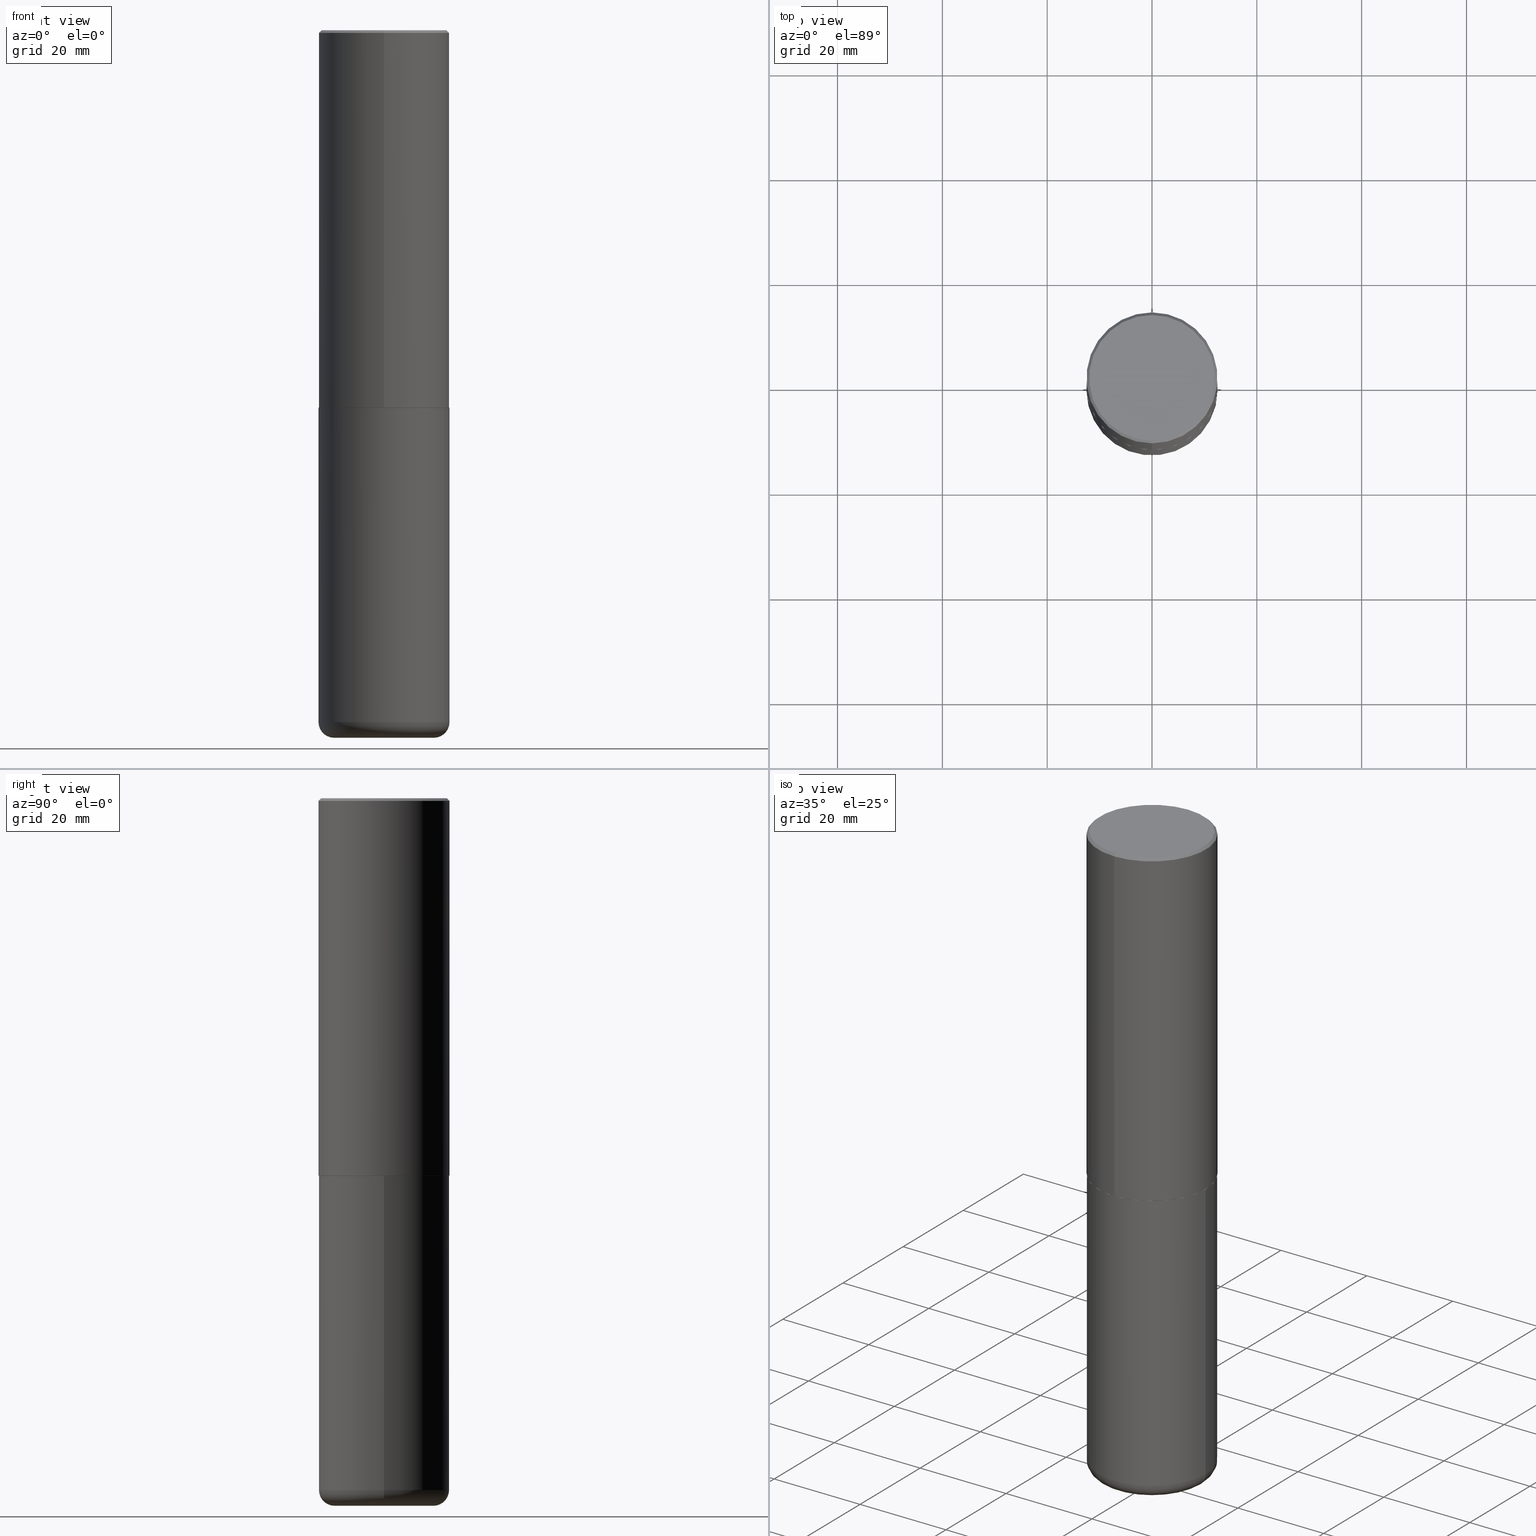
[diagram: canonical four-view strip — front | top / right | iso, engineering-drawing reading convention]
A machine part, canonical four-view strip (front | top / right | iso — engineering-drawing reading convention). The complete STEP part file that produces these views, byte-faithful:
ISO-10303-21;
HEADER;
FILE_DESCRIPTION (( 'STEP AP203' ),
    '1' );
FILE_NAME ('74877.STEP',
    '2024-05-02T19:26:33',
    ( '' ),
    ( '' ),
    'SwSTEP 2.0',
    'SolidWorks 2023',
    '' );
FILE_SCHEMA (( 'CONFIG_CONTROL_DESIGN' ));
ENDSEC;

DATA;
#1 = CIRCLE ( 'NONE', #272, 0.4921500000000000319 ) ;
#2 = EDGE_LOOP ( 'NONE', ( #293, #268 ) ) ;
#3 = CC_DESIGN_PERSON_AND_ORGANIZATION_ASSIGNMENT ( #46, #113, ( #188 ) ) ;
#4 = ORIENTED_EDGE ( 'NONE', *, *, #367, .T. ) ;
#5 = PERSON_AND_ORGANIZATION ( #160, #13 ) ;
#6 = DIMENSIONAL_EXPONENTS ( 1.000000000000000000, 0.000000000000000000, 0.000000000000000000, 0.000000000000000000, 0.000000000000000000, 0.000000000000000000, 0.000000000000000000 ) ;
#7 = ORIENTED_EDGE ( 'NONE', *, *, #92, .F. ) ;
#8 = EDGE_CURVE ( 'NONE', #206, #271, #350, .T. ) ;
#9 = CALENDAR_DATE ( 2024, 2, 5 ) ;
#10 = CARTESIAN_POINT ( 'NONE',  ( 3.436665081823296565E-15, 0.4921499999999999764, -0.02000000000000182535 ) ) ;
#11 = AXIS2_PLACEMENT_3D ( 'NONE', #226, #410, #257 ) ;
#12 = EDGE_CURVE ( 'NONE', #106, #104, #30, .T. ) ;
#13 = ORGANIZATION ( 'UNSPECIFIED', 'UNSPECIFIED', '' ) ;
#14 = CARTESIAN_POINT ( 'NONE',  ( 6.932170424893007423E-29, -9.897302151218665974E-15, -2.834700000000000220 ) ) ;
#15 = DIRECTION ( 'NONE',  ( 1.000000000000000000, -6.982962677686266711E-15, 4.883557194083112340E-29 ) ) ;
#16 = ADVANCED_FACE ( 'NONE', ( #170 ), #403, .F. ) ;
#17 = DIRECTION ( 'NONE',  ( -6.982962677686265922E-15, -1.000000000000000000, 3.491824508290438613E-15 ) ) ;
#18 = AXIS2_PLACEMENT_3D ( 'NONE', #94, #408, #314 ) ;
#19 = CARTESIAN_POINT ( 'NONE',  ( -3.429682119145539948E-15, -0.4911500000000098565, -2.834699999999998443 ) ) ;
#20 = FACE_OUTER_BOUND ( 'NONE', #114, .T. ) ;
#21 = EDGE_CURVE ( 'NONE', #271, #215, #310, .T. ) ;
#22 = DIRECTION ( 'NONE',  ( 1.000000000000000000, -6.982962677686265133E-15, 0.000000000000000000 ) ) ;
#23 = AXIS2_PLACEMENT_3D ( 'NONE', #223, #184, #120 ) ;
#24 = AXIS2_PLACEMENT_3D ( 'NONE', #180, #280, #405 ) ;
#25 = CYLINDRICAL_SURFACE ( 'NONE', #196, 0.4921499999999999764 ) ;
#26 = FACE_OUTER_BOUND ( 'NONE', #356, .T. ) ;
#27 = DIRECTION ( 'NONE',  ( -2.445468806185136597E-29, 3.491481338843145583E-15, 1.000000000000000000 ) ) ;
#28 = CC_DESIGN_SECURITY_CLASSIFICATION ( #230, ( #188 ) ) ;
#29 = DIRECTION ( 'NONE',  ( -6.982962677686265922E-15, -1.000000000000000000, 3.330506545156063891E-15 ) ) ;
#30 = CIRCLE ( 'NONE', #246, 0.4721499999999997921 ) ;
#31 = ORIENTED_EDGE ( 'NONE', *, *, #397, .F. ) ;
#32 = CARTESIAN_POINT ( 'NONE',  ( 6.931491134551223323E-29, -9.898274933650907147E-15, -2.834700000000000220 ) ) ;
#33 = ORIENTED_EDGE ( 'NONE', *, *, #21, .T. ) ;
#34 = CARTESIAN_POINT ( 'NONE',  ( -3.429682119145539948E-15, -0.4911500000000098565, -2.834699999999998443 ) ) ;
#35 = EDGE_LOOP ( 'NONE', ( #263, #195, #33, #417 ) ) ;
#36 = CARTESIAN_POINT ( 'NONE',  ( -3.436665081823228329E-15, -0.4921500000000101904, -2.833699999999998997 ) ) ;
#37 = CIRCLE ( 'NONE', #254, 0.4921499999999999764 ) ;
#38 = ORIENTED_EDGE ( 'NONE', *, *, #140, .T. ) ;
#39 = ORIENTED_EDGE ( 'NONE', *, *, #348, .T. ) ;
#40 = PRODUCT_DEFINITION_SHAPE ( 'NONE', 'NONE',  #194 ) ;
#41 = APPROVAL_DATE_TIME ( #83, #393 ) ;
#42 = CARTESIAN_POINT ( 'NONE',  ( 3.489830646685800520E-15, 0.4911499999999900390, -2.834700000000001996 ) ) ;
#43 = DATE_AND_TIME ( #207, #67 ) ;
#44 = CARTESIAN_POINT ( 'NONE',  ( -3.307789109625542536E-15, -0.4721499999999997921, 1.930548793390495776E-15 ) ) ;
#45 = AXIS2_PLACEMENT_3D ( 'NONE', #182, #378, #253 ) ;
#46 = PERSON_AND_ORGANIZATION ( #160, #13 ) ;
#47 = DIRECTION ( 'NONE',  ( -1.000000000000000000, 6.982962677686265922E-15, -4.876176775795935793E-29 ) ) ;
#48 = APPROVAL_STATUS ( 'not_yet_approved' ) ;
#49 = MANIFOLD_SOLID_BREP ( 'Body-Move/Copy2[2]', #220 ) ;
#50 = CARTESIAN_POINT ( 'NONE',  ( 6.931491134551223323E-29, -9.898274933650907147E-15, -2.834700000000000220 ) ) ;
#51 = PERSON_AND_ORGANIZATION ( #160, #13 ) ;
#52 = FACE_OUTER_BOUND ( 'NONE', #99, .T. ) ;
#53 = CIRCLE ( 'NONE', #181, 0.4911499999999999755 ) ;
#54 =( GEOMETRIC_REPRESENTATION_CONTEXT ( 3 ) GLOBAL_UNCERTAINTY_ASSIGNED_CONTEXT ( ( #183 ) ) GLOBAL_UNIT_ASSIGNED_CONTEXT ( ( #259, #266, #389 ) ) REPRESENTATION_CONTEXT ( 'NONE', 'WORKASPACE' ) );
#55 = DIRECTION ( 'NONE',  ( -6.982962677686265922E-15, -1.000000000000000000, 3.337287582609300506E-15 ) ) ;
#56 = EDGE_CURVE ( 'NONE', #363, #390, #79, .T. ) ;
#57 = CARTESIAN_POINT ( 'NONE',  ( 3.297005828269569180E-15, 0.4721499999999997921, -1.507723015688746393E-15 ) ) ;
#58 = CARTESIAN_POINT ( 'NONE',  ( -0.4921499999999999764, -1.464794329579061349E-14, -5.196900000000000297 ) ) ;
#59 = VECTOR ( 'NONE', #85, 39.37007874015748143 ) ;
#60 = FACE_OUTER_BOUND ( 'NONE', #2, .T. ) ;
#61 = DIRECTION ( 'NONE',  ( -2.445229172240879899E-29, 3.491824508290438219E-15, 1.000000000000000000 ) ) ;
#62 = CC_DESIGN_PERSON_AND_ORGANIZATION_ASSIGNMENT ( #243, #274, ( #230 ) ) ;
#63 = PLANE ( 'NONE',  #413 ) ;
#64 = ORIENTED_EDGE ( 'NONE', *, *, #311, .F. ) ;
#65 = DIRECTION ( 'NONE',  ( 6.982962677686265922E-15, 1.000000000000000000, -3.495297233588267070E-15 ) ) ;
#66 = AXIS2_PLACEMENT_3D ( 'NONE', #317, #374, #87 ) ;
#67 = LOCAL_TIME ( 15, 26, 33.00000000000000000, #76 ) ;
#68 = EDGE_LOOP ( 'NONE', ( #109, #209, #203, #231 ) ) ;
#69 = VERTEX_POINT ( 'NONE', #10 ) ;
#70 = DIRECTION ( 'NONE',  ( -2.445229172240879899E-29, 3.491824508290438219E-15, 1.000000000000000000 ) ) ;
#71 = ORIENTED_EDGE ( 'NONE', *, *, #8, .T. ) ;
#72 = ADVANCED_FACE ( 'NONE', ( #398 ), #273, .T. ) ;
#73 = DIRECTION ( 'NONE',  ( 1.000000000000000000, 0.000000000000000000, 0.000000000000000000 ) ) ;
#74 = ORIENTED_EDGE ( 'NONE', *, *, #154, .T. ) ;
#75 = LOCAL_TIME ( 15, 26, 33.00000000000000000, #107 ) ;
#76 = COORDINATED_UNIVERSAL_TIME_OFFSET ( 5, 0, .BEHIND. ) ;
#77 = LINE ( 'NONE', #42, #297 ) ;
#78 = APPROVAL_STATUS ( 'not_yet_approved' ) ;
#79 = LINE ( 'NONE', #19, #59 ) ;
#80 = DIRECTION ( 'NONE',  ( -2.445468806185136597E-29, 3.491481338843145583E-15, 1.000000000000000000 ) ) ;
#81 = ADVANCED_FACE ( 'NONE', ( #176 ), #344, .T. ) ;
#82 = CC_DESIGN_APPROVAL ( #393, ( #188 ) ) ;
#83 = DATE_AND_TIME ( #338, #124 ) ;
#84 = DIRECTION ( 'NONE',  ( -2.445229172240879899E-29, 3.491824508290438219E-15, 1.000000000000000000 ) ) ;
#85 = DIRECTION ( 'NONE',  ( -4.937700262165896205E-15, -0.7071067811867381980, 0.7071067811863568364 ) ) ;
#86 = EDGE_CURVE ( 'NONE', #390, #373, #145, .T. ) ;
#87 = DIRECTION ( 'NONE',  ( 1.000000000000000000, -6.982962677686265133E-15, 0.000000000000000000 ) ) ;
#88 = CONICAL_SURFACE ( 'NONE', #388, 0.4911499999999999755, 0.7853981633977213939 ) ;
#89 = DIRECTION ( 'NONE',  ( 1.000000000000000000, -6.982962677686265133E-15, 0.000000000000000000 ) ) ;
#90 = DIRECTION ( 'NONE',  ( -2.445229172240879899E-29, 3.491824508290438613E-15, 1.000000000000000000 ) ) ;
#91 = CARTESIAN_POINT ( 'NONE',  ( 1.299766670487400218E-28, -1.855722331595131973E-14, -5.315000000000000391 ) ) ;
#92 = EDGE_CURVE ( 'NONE', #373, #69, #187, .T. ) ;
#93 = AXIS2_PLACEMENT_3D ( 'NONE', #227, #70, #199 ) ;
#94 = CARTESIAN_POINT ( 'NONE',  ( 4.890458344481786073E-31, -6.983649016580912824E-17, -0.02000000000000010797 ) ) ;
#95 = PRODUCT_RELATED_PRODUCT_CATEGORY ( 'detail', '', ( #165 ) ) ;
#96 = MECHANICAL_CONTEXT ( 'NONE', #365, 'mechanical' ) ;
#97 = EDGE_CURVE ( 'NONE', #270, #271, #131, .T. ) ;
#98 = CARTESIAN_POINT ( 'NONE',  ( 4.890458344481786073E-31, -6.983649016580912824E-17, -0.02000000000000010797 ) ) ;
#99 = EDGE_LOOP ( 'NONE', ( #198, #129, #71, #415 ) ) ;
#100 = PERSON_AND_ORGANIZATION_ROLE ( 'design_owner' ) ;
#101 = TOROIDAL_SURFACE ( 'NONE', #115, 0.3740499999999999381, 0.1181000000000000660 ) ;
#102 = CC_DESIGN_APPROVAL ( #333, ( #194 ) ) ;
#103 = ORIENTED_EDGE ( 'NONE', *, *, #411, .T. ) ;
#104 = VERTEX_POINT ( 'NONE', #44 ) ;
#105 = CARTESIAN_POINT ( 'NONE',  ( 3.493383360364602601E-15, 0.4911499999999900390, -2.834700000000001996 ) ) ;
#106 = VERTEX_POINT ( 'NONE', #343 ) ;
#107 = COORDINATED_UNIVERSAL_TIME_OFFSET ( 5, 0, .BEHIND. ) ;
#108 = AXIS2_PLACEMENT_3D ( 'NONE', #14, #141, #47 ) ;
#109 = ORIENTED_EDGE ( 'NONE', *, *, #329, .T. ) ;
#110 = PERSON_AND_ORGANIZATION_ROLE ( 'creator' ) ;
#111 = CARTESIAN_POINT ( 'NONE',  ( 0.000000000000000000, 0.000000000000000000, 0.000000000000000000 ) ) ;
#112 = CARTESIAN_POINT ( 'NONE',  ( 1.270885683886353718E-28, -1.814487936983394718E-14, -5.196900000000000297 ) ) ;
#113 = PERSON_AND_ORGANIZATION_ROLE ( 'creator' ) ;
#114 = EDGE_LOOP ( 'NONE', ( #339, #4, #334, #64 ) ) ;
#115 = AXIS2_PLACEMENT_3D ( 'NONE', #121, #27, #347 ) ;
#116 = CARTESIAN_POINT ( 'NONE',  ( 0.3740499999999999381, -2.075685655942249311E-14, -5.196900000000000297 ) ) ;
#117 = DIRECTION ( 'NONE',  ( -6.982962677686265922E-15, -1.000000000000000000, 3.337287582609300506E-15 ) ) ;
#118 = DIRECTION ( 'NONE',  ( 1.000000000000000000, -6.982962677686265922E-15, 4.876176775795935793E-29 ) ) ;
#119 = AXIS2_PLACEMENT_3D ( 'NONE', #371, #84, #178 ) ;
#120 = DIRECTION ( 'NONE',  ( 1.000000000000000000, -6.982962677686265922E-15, 0.000000000000000000 ) ) ;
#121 = CARTESIAN_POINT ( 'NONE',  ( 1.270885683886353718E-28, -1.814487936983394718E-14, -5.196900000000000297 ) ) ;
#122 = CARTESIAN_POINT ( 'NONE',  ( -0.4921499999999999764, -1.052415468648297289E-14, -2.834700000000000220 ) ) ;
#123 = AXIS2_PLACEMENT_3D ( 'NONE', #116, #276, #139 ) ;
#124 = LOCAL_TIME ( 15, 26, 33.00000000000000000, #177 ) ;
#125 = ADVANCED_FACE ( 'NONE', ( #52 ), #396, .T. ) ;
#126 = ORIENTED_EDGE ( 'NONE', *, *, #86, .F. ) ;
#127 = CC_DESIGN_PERSON_AND_ORGANIZATION_ASSIGNMENT ( #416, #100, ( #165 ) ) ;
#128 = CARTESIAN_POINT ( 'NONE',  ( 0.000000000000000000, 0.000000000000000000, 0.000000000000000000 ) ) ;
#129 = ORIENTED_EDGE ( 'NONE', *, *, #252, .T. ) ;
#130 = CLOSED_SHELL ( 'NONE', ( #236, #248, #16, #72, #125, #379 ) ) ;
#131 = CIRCLE ( 'NONE', #171, 0.4921500000000000319 ) ;
#132 = DIRECTION ( 'NONE',  ( -2.445468806185136877E-29, 3.491481338843145188E-15, 1.000000000000000000 ) ) ;
#133 = ORIENTED_EDGE ( 'NONE', *, *, #329, .F. ) ;
#134 = LENGTH_MEASURE_WITH_UNIT ( LENGTH_MEASURE( 0.02539999999999999897 ), #326 );
#135 = ORIENTED_EDGE ( 'NONE', *, *, #140, .F. ) ;
#136 = EDGE_LOOP ( 'NONE', ( #133, #172 ) ) ;
#137 = APPROVAL_ROLE ( '' ) ;
#138 = AXIS2_PLACEMENT_3D ( 'NONE', #112, #370, #15 ) ;
#139 = DIRECTION ( 'NONE',  ( 1.000000000000000000, -6.982962677686270655E-15, 0.000000000000000000 ) ) ;
#140 = EDGE_CURVE ( 'NONE', #362, #299, #77, .T. ) ;
#141 = DIRECTION ( 'NONE',  ( 2.438088387897960049E-29, -3.491481338843145188E-15, -1.000000000000000000 ) ) ;
#142 = DIRECTION ( 'NONE',  ( 5.024295867789434219E-15, 0.7071067811867430830, 0.7071067811863519514 ) ) ;
#143 = DIRECTION ( 'NONE',  ( -2.445229172240879899E-29, 3.491824508290438219E-15, 1.000000000000000000 ) ) ;
#144 = CIRCLE ( 'NONE', #382, 0.4921500000000003094 ) ;
#145 = LINE ( 'NONE', #368, #155 ) ;
#146 = EDGE_CURVE ( 'NONE', #362, #363, #221, .T. ) ;
#147 = DIRECTION ( 'NONE',  ( 2.445229172240879339E-29, -3.491824508290438613E-15, -1.000000000000000000 ) ) ;
#148 = CARTESIAN_POINT ( 'NONE',  ( 6.931491134551223323E-29, -9.898274933650907147E-15, -2.834700000000000220 ) ) ;
#149 = AXIS2_PLACEMENT_3D ( 'NONE', #57, #147, #283 ) ;
#150 = ADVANCED_FACE ( 'NONE', ( #216 ), #340, .F. ) ;
#151 = CARTESIAN_POINT ( 'NONE',  ( 3.496936074043333686E-15, 0.4921500000000001984, -1.718501431755139742E-15 ) ) ;
#152 = DIRECTION ( 'NONE',  ( -2.445229172240879899E-29, 3.491824508290438219E-15, 1.000000000000000000 ) ) ;
#153 = FACE_OUTER_BOUND ( 'NONE', #162, .T. ) ;
#154 = EDGE_CURVE ( 'NONE', #299, #69, #409, .T. ) ;
#155 = VECTOR ( 'NONE', #217, 39.37007874015748143 ) ;
#156 = AXIS2_PLACEMENT_3D ( 'NONE', #128, #269, #73 ) ;
#157 = DIRECTION ( 'NONE',  ( -2.445229172240879899E-29, 3.491824508290438219E-15, 1.000000000000000000 ) ) ;
#158 = EDGE_LOOP ( 'NONE', ( #386, #235 ) ) ;
#159 = APPROVAL ( #78, 'UNSPECIFIED' ) ;
#160 = PERSON ( 'UNSPECIFIED', 'UNSPECIFIED', 'UNSPECIFIED', ('UNSPECIFIED'), ('UNSPECIFIED'), ('UNSPECIFIED') ) ;
#161 = CARTESIAN_POINT ( 'NONE',  ( -0.4921499999999999764, 3.496936074043332897E-15, -2.420853904668951509E-29 ) ) ;
#162 = EDGE_LOOP ( 'NONE', ( #327, #38, #296, #261 ) ) ;
#163 = DIRECTION ( 'NONE',  ( 4.937700262164532265E-15, 0.7071067811865429098, -0.7071067811865521247 ) ) ;
#164 = EDGE_LOOP ( 'NONE', ( #135, #233, #395, #200 ) ) ;
#165 = PRODUCT ( '74877', '74877', '', ( #96 ) ) ;
#166 = ORIENTED_EDGE ( 'NONE', *, *, #92, .T. ) ;
#167 = ADVANCED_FACE ( 'NONE', ( #60 ), #377, .F. ) ;
#168 = ORIENTED_EDGE ( 'NONE', *, *, #12, .F. ) ;
#169 = APPROVAL_ROLE ( '' ) ;
#170 = FACE_OUTER_BOUND ( 'NONE', #158, .T. ) ;
#171 = AXIS2_PLACEMENT_3D ( 'NONE', #211, #80, #335 ) ;
#172 = ORIENTED_EDGE ( 'NONE', *, *, #252, .F. ) ;
#173 = APPROVAL_PERSON_ORGANIZATION ( #399, #159, #137 ) ;
#174 = DESIGN_CONTEXT ( 'detailed design', #384, 'design' ) ;
#175 = PERSON_AND_ORGANIZATION_ROLE ( 'design_supplier' ) ;
#176 = FACE_OUTER_BOUND ( 'NONE', #306, .T. ) ;
#177 = COORDINATED_UNIVERSAL_TIME_OFFSET ( 5, 0, .BEHIND. ) ;
#178 = DIRECTION ( 'NONE',  ( -6.982962677686265922E-15, -1.000000000000000000, 3.337287582609300506E-15 ) ) ;
#179 = EDGE_CURVE ( 'NONE', #363, #362, #53, .T. ) ;
#180 = CARTESIAN_POINT ( 'NONE',  ( 4.890458344481786073E-31, -6.983649016580912824E-17, -0.02000000000000010797 ) ) ;
#181 = AXIS2_PLACEMENT_3D ( 'NONE', #192, #152, #55 ) ;
#182 = CARTESIAN_POINT ( 'NONE',  ( 0.000000000000000000, 0.000000000000000000, 0.000000000000000000 ) ) ;
#183 = UNCERTAINTY_MEASURE_WITH_UNIT (LENGTH_MEASURE( 1.000000000000000082E-05 ), #259, 'distance_accuracy_value', 'NONE');
#184 = DIRECTION ( 'NONE',  ( -2.445468806185136597E-29, 3.491481338843145583E-15, 1.000000000000000000 ) ) ;
#185 = EDGE_CURVE ( 'NONE', #191, #215, #214, .T. ) ;
#186 = CARTESIAN_POINT ( 'NONE',  ( 0.4921499999999999764, -2.158154445165724138E-14, -5.196900000000000297 ) ) ;
#187 = CIRCLE ( 'NONE', #24, 0.4921500000000000319 ) ;
#188 = PRODUCT_DEFINITION_FORMATION_WITH_SPECIFIED_SOURCE ( 'ANY', '', #165, .NOT_KNOWN. ) ;
#189 = MANIFOLD_SOLID_BREP ( 'Body-Move/Copy2[1]', #130 ) ;
#190 = DIRECTION ( 'NONE',  ( -2.445468806185136597E-29, 3.491481338843145583E-15, 1.000000000000000000 ) ) ;
#191 = VERTEX_POINT ( 'NONE', #122 ) ;
#192 = CARTESIAN_POINT ( 'NONE',  ( 6.931491134551223323E-29, -9.898274933650907147E-15, -2.834700000000000220 ) ) ;
#193 = CARTESIAN_POINT ( 'NONE',  ( 1.299766670487400218E-28, -1.855722331595131973E-14, -5.315000000000000391 ) ) ;
#194 = PRODUCT_DEFINITION ( 'UNKNOWN', '', #188, #174 ) ;
#195 = ORIENTED_EDGE ( 'NONE', *, *, #97, .T. ) ;
#196 = AXIS2_PLACEMENT_3D ( 'NONE', #224, #286, #118 ) ;
#197 = CARTESIAN_POINT ( 'NONE',  ( -3.376394089603258656E-15, -0.4921500000000000874, -0.01999999999999838712 ) ) ;
#198 = ORIENTED_EDGE ( 'NONE', *, *, #316, .F. ) ;
#199 = DIRECTION ( 'NONE',  ( -6.982962677686265922E-15, -1.000000000000000000, 3.491824508290437824E-15 ) ) ;
#200 = ORIENTED_EDGE ( 'NONE', *, *, #367, .F. ) ;
#201 = ADVANCED_FACE ( 'NONE', ( #20 ), #222, .T. ) ;
#202 = CARTESIAN_POINT ( 'NONE',  ( 6.929045905378983914E-29, -9.894783109142616722E-15, -2.833700000000000330 ) ) ;
#203 = ORIENTED_EDGE ( 'NONE', *, *, #262, .F. ) ;
#204 = CIRCLE ( 'NONE', #264, 0.3740499999999999381 ) ;
#205 = DIRECTION ( 'NONE',  ( 2.445229172240879899E-29, -3.491824508290438219E-15, -1.000000000000000000 ) ) ;
#206 = VERTEX_POINT ( 'NONE', #255 ) ;
#207 = CALENDAR_DATE ( 2024, 2, 5 ) ;
#208 = ADVANCED_FACE ( 'NONE', ( #288 ), #219, .T. ) ;
#209 = ORIENTED_EDGE ( 'NONE', *, *, #316, .T. ) ;
#210 = APPROVAL_DATE_TIME ( #43, #333 ) ;
#211 = CARTESIAN_POINT ( 'NONE',  ( 1.270885683886353718E-28, -1.814487936983394718E-14, -5.196900000000000297 ) ) ;
#212 = CC_DESIGN_DATE_AND_TIME_ASSIGNMENT ( #342, #372, ( #230 ) ) ;
#213 = PERSON_AND_ORGANIZATION ( #160, #13 ) ;
#214 = CIRCLE ( 'NONE', #23, 0.4921499999999999764 ) ;
#215 = VERTEX_POINT ( 'NONE', #312 ) ;
#216 = FACE_OUTER_BOUND ( 'NONE', #229, .T. ) ;
#217 = DIRECTION ( 'NONE',  ( -2.445229172240879899E-29, 3.491824508290438613E-15, 1.000000000000000000 ) ) ;
#218 = AXIS2_PLACEMENT_3D ( 'NONE', #32, #157, #291 ) ;
#219 = CYLINDRICAL_SURFACE ( 'NONE', #45, 0.4921500000000001984 ) ;
#220 = CLOSED_SHELL ( 'NONE', ( #282, #208, #336, #81, #201, #404, #150, #167 ) ) ;
#221 = CIRCLE ( 'NONE', #119, 0.4911499999999999755 ) ;
#222 = CYLINDRICAL_SURFACE ( 'NONE', #375, 0.4921500000000001984 ) ;
#223 = CARTESIAN_POINT ( 'NONE',  ( 6.932170424893007423E-29, -9.897302151218665974E-15, -2.834700000000000220 ) ) ;
#224 = CARTESIAN_POINT ( 'NONE',  ( 0.000000000000000000, 0.000000000000000000, 0.000000000000000000 ) ) ;
#225 = VECTOR ( 'NONE', #250, 39.37007874015748143 ) ;
#226 = CARTESIAN_POINT ( 'NONE',  ( -0.3740499999999999381, -1.548709426672329248E-14, -5.196900000000000297 ) ) ;
#227 = CARTESIAN_POINT ( 'NONE',  ( -6.892706176078369160E-45, 9.842889422106222579E-31, 2.818838518011663701E-16 ) ) ;
#228 = LINE ( 'NONE', #197, #289 ) ;
#229 = EDGE_LOOP ( 'NONE', ( #320, #240 ) ) ;
#230 = SECURITY_CLASSIFICATION ( '', '', #305 ) ;
#231 = ORIENTED_EDGE ( 'NONE', *, *, #8, .F. ) ;
#232 = DIRECTION ( 'NONE',  ( -2.445229172240879899E-29, 3.491824508290438219E-15, 1.000000000000000000 ) ) ;
#233 = ORIENTED_EDGE ( 'NONE', *, *, #146, .T. ) ;
#234 = DIRECTION ( 'NONE',  ( -4.851104656540949287E-15, -0.7071067811865477948, -0.7071067811865472397 ) ) ;
#235 = ORIENTED_EDGE ( 'NONE', *, *, #185, .T. ) ;
#236 = ADVANCED_FACE ( 'NONE', ( #346 ), #25, .T. ) ;
#237 = VECTOR ( 'NONE', #163, 39.37007874015748143 ) ;
#238 = COORDINATED_UNIVERSAL_TIME_OFFSET ( 5, 0, .BEHIND. ) ;
#239 = CC_DESIGN_APPROVAL ( #159, ( #230 ) ) ;
#240 = ORIENTED_EDGE ( 'NONE', *, *, #146, .F. ) ;
#241 = DATE_AND_TIME ( #249, #303 ) ;
#242 = DIRECTION ( 'NONE',  ( 6.982962677686265922E-15, 1.000000000000000000, -3.495297233588267070E-15 ) ) ;
#243 = PERSON_AND_ORGANIZATION ( #160, #13 ) ;
#244 = ORIENTED_EDGE ( 'NONE', *, *, #311, .T. ) ;
#245 = COORDINATED_UNIVERSAL_TIME_OFFSET ( 5, 0, .BEHIND. ) ;
#246 = AXIS2_PLACEMENT_3D ( 'NONE', #301, #143, #400 ) ;
#247 = DIRECTION ( 'NONE',  ( 2.445229172240879899E-29, -3.491824508290438219E-15, -1.000000000000000000 ) ) ;
#248 = ADVANCED_FACE ( 'NONE', ( #345 ), #101, .T. ) ;
#249 = CALENDAR_DATE ( 2024, 2, 5 ) ;
#250 = DIRECTION ( 'NONE',  ( -2.445468806185136877E-29, 3.491481338843145188E-15, 1.000000000000000000 ) ) ;
#251 = DIRECTION ( 'NONE',  ( -2.445468806185136597E-29, 3.491481338843145583E-15, 1.000000000000000000 ) ) ;
#252 = EDGE_CURVE ( 'NONE', #292, #206, #204, .T. ) ;
#253 = DIRECTION ( 'NONE',  ( -6.982962677686266711E-15, -1.000000000000000000, 3.491824508290437824E-15 ) ) ;
#254 = AXIS2_PLACEMENT_3D ( 'NONE', #381, #251, #380 ) ;
#255 = CARTESIAN_POINT ( 'NONE',  ( 0.3740499999999999381, -2.116920050553986882E-14, -5.315000000000000391 ) ) ;
#256 = DIRECTION ( 'NONE',  ( -2.445229172240879899E-29, 3.491824508290438219E-15, 1.000000000000000000 ) ) ;
#257 = DIRECTION ( 'NONE',  ( -1.000000000000000000, 7.105427357601001859E-15, 0.000000000000000000 ) ) ;
#258 = CIRCLE ( 'NONE', #278, 0.4921500000000003094 ) ;
#259 =( CONVERSION_BASED_UNIT ( 'INCH', #134 ) LENGTH_UNIT ( ) NAMED_UNIT ( #6 ) );
#260 = APPLICATION_PROTOCOL_DEFINITION ( 'international standard', 'config_control_design', 1994, #365 ) ;
#261 = ORIENTED_EDGE ( 'NONE', *, *, #56, .F. ) ;
#262 = EDGE_CURVE ( 'NONE', #271, #270, #1, .T. ) ;
#263 = ORIENTED_EDGE ( 'NONE', *, *, #411, .F. ) ;
#264 = AXIS2_PLACEMENT_3D ( 'NONE', #91, #190, #89 ) ;
#265 = VECTOR ( 'NONE', #90, 39.37007874015748143 ) ;
#266 =( NAMED_UNIT ( * ) PLANE_ANGLE_UNIT ( ) SI_UNIT ( $, .RADIAN. ) );
#267 = CC_DESIGN_PERSON_AND_ORGANIZATION_ASSIGNMENT ( #51, #110, ( #194 ) ) ;
#268 = ORIENTED_EDGE ( 'NONE', *, *, #352, .T. ) ;
#269 = DIRECTION ( 'NONE',  ( 0.000000000000000000, 0.000000000000000000, 1.000000000000000000 ) ) ;
#270 = VERTEX_POINT ( 'NONE', #58 ) ;
#271 = VERTEX_POINT ( 'NONE', #186 ) ;
#272 = AXIS2_PLACEMENT_3D ( 'NONE', #287, #313, #22 ) ;
#273 = CYLINDRICAL_SURFACE ( 'NONE', #285, 0.4921499999999999764 ) ;
#274 = PERSON_AND_ORGANIZATION_ROLE ( 'classification_officer' ) ;
#275 = CARTESIAN_POINT ( 'NONE',  ( 4.890458344481786073E-31, -6.983649016580912824E-17, -0.02000000000000010797 ) ) ;
#276 = DIRECTION ( 'NONE',  ( -6.982962677686266711E-15, -1.000000000000000000, 3.491481338843145583E-15 ) ) ;
#277 = CALENDAR_DATE ( 2024, 2, 5 ) ;
#278 = AXIS2_PLACEMENT_3D ( 'NONE', #330, #412, #29 ) ;
#279 = CONICAL_SURFACE ( 'NONE', #218, 0.4911499999999999755, 0.7853981633977213939 ) ;
#280 = DIRECTION ( 'NONE',  ( -2.445229172240879899E-29, 3.491824508290438219E-15, 1.000000000000000000 ) ) ;
#281 = DIRECTION ( 'NONE',  ( 1.000000000000000000, -6.982962677686265922E-15, 4.876176775795935793E-29 ) ) ;
#282 = ADVANCED_FACE ( 'NONE', ( #153 ), #88, .T. ) ;
#283 = DIRECTION ( 'NONE',  ( 6.982962677686265922E-15, 1.000000000000000000, -3.491824508290438613E-15 ) ) ;
#284 = CARTESIAN_POINT ( 'NONE',  ( -0.3740499999999999381, -1.527369075431564084E-14, -5.315000000000000391 ) ) ;
#285 = AXIS2_PLACEMENT_3D ( 'NONE', #111, #401, #281 ) ;
#286 = DIRECTION ( 'NONE',  ( -2.445468806185136597E-29, 3.491481338843145583E-15, 1.000000000000000000 ) ) ;
#287 = CARTESIAN_POINT ( 'NONE',  ( 1.270885683886353718E-28, -1.814487936983394718E-14, -5.196900000000000297 ) ) ;
#288 = FACE_OUTER_BOUND ( 'NONE', #318, .T. ) ;
#289 = VECTOR ( 'NONE', #234, 39.37007874015748143 ) ;
#290 = LOCAL_TIME ( 15, 26, 33.00000000000000000, #238 ) ;
#291 = DIRECTION ( 'NONE',  ( -6.982962677686265922E-15, -1.000000000000000000, 3.337287582609300506E-15 ) ) ;
#292 = VERTEX_POINT ( 'NONE', #284 ) ;
#293 = ORIENTED_EDGE ( 'NONE', *, *, #12, .T. ) ;
#294 = CC_DESIGN_DATE_AND_TIME_ASSIGNMENT ( #241, #332, ( #194 ) ) ;
#295 = CARTESIAN_POINT ( 'NONE',  ( -3.376394089603258656E-15, -0.4921500000000000874, -0.01999999999999838712 ) ) ;
#296 = ORIENTED_EDGE ( 'NONE', *, *, #348, .F. ) ;
#297 = VECTOR ( 'NONE', #142, 39.37007874015748143 ) ;
#298 = ORIENTED_EDGE ( 'NONE', *, *, #21, .F. ) ;
#299 = VERTEX_POINT ( 'NONE', #349 ) ;
#300 = PERSON_AND_ORGANIZATION ( #160, #13 ) ;
#301 = CARTESIAN_POINT ( 'NONE',  ( -6.892706176078369160E-45, 9.842889422106222579E-31, 2.818838518011663701E-16 ) ) ;
#302 = CONICAL_SURFACE ( 'NONE', #357, 0.4921500000000000319, 0.7853981633974452814 ) ;
#303 = LOCAL_TIME ( 15, 26, 33.00000000000000000, #245 ) ;
#304 = CARTESIAN_POINT ( 'NONE',  ( 0.4921499999999999764, -3.436665081823295777E-15, 2.399810400207969603E-29 ) ) ;
#305 = SECURITY_CLASSIFICATION_LEVEL ( 'unclassified' ) ;
#306 = EDGE_LOOP ( 'NONE', ( #31, #168, #323, #244 ) ) ;
#307 = APPROVAL_STATUS ( 'not_yet_approved' ) ;
#308 = DIRECTION ( 'NONE',  ( -2.445229172240879339E-29, 3.491824508290438613E-15, 1.000000000000000000 ) ) ;
#309 = CIRCLE ( 'NONE', #66, 0.3740499999999999381 ) ;
#310 = LINE ( 'NONE', #304, #225 ) ;
#311 = EDGE_CURVE ( 'NONE', #69, #373, #402, .T. ) ;
#312 = CARTESIAN_POINT ( 'NONE',  ( 0.4921499999999999764, -1.333396723304196175E-14, -2.834700000000000220 ) ) ;
#313 = DIRECTION ( 'NONE',  ( -2.445468806185136597E-29, 3.491481338843145583E-15, 1.000000000000000000 ) ) ;
#314 = DIRECTION ( 'NONE',  ( -6.982962677686265922E-15, -1.000000000000000000, 3.495297233588267070E-15 ) ) ;
#315 = CIRCLE ( 'NONE', #11, 0.1181000000000000383 ) ;
#316 = EDGE_CURVE ( 'NONE', #292, #270, #315, .T. ) ;
#317 = CARTESIAN_POINT ( 'NONE',  ( 1.299766670487400218E-28, -1.855722331595131973E-14, -5.315000000000000391 ) ) ;
#318 = EDGE_LOOP ( 'NONE', ( #39, #74, #7, #126 ) ) ;
#319 = DIRECTION ( 'NONE',  ( 2.438088387897960049E-29, -3.491481338843145188E-15, -1.000000000000000000 ) ) ;
#320 = ORIENTED_EDGE ( 'NONE', *, *, #179, .F. ) ;
#321 = EDGE_CURVE ( 'NONE', #215, #191, #37, .T. ) ;
#322 = DIRECTION ( 'NONE',  ( -1.000000000000000000, 6.982962677686265922E-15, -4.876176775795935793E-29 ) ) ;
#323 = ORIENTED_EDGE ( 'NONE', *, *, #383, .T. ) ;
#324 = LINE ( 'NONE', #361, #237 ) ;
#325 = ORIENTED_EDGE ( 'NONE', *, *, #397, .T. ) ;
#326 =( LENGTH_UNIT ( ) NAMED_UNIT ( * ) SI_UNIT ( $, .METRE. ) );
#327 = ORIENTED_EDGE ( 'NONE', *, *, #179, .T. ) ;
#328 = AXIS2_PLACEMENT_3D ( 'NONE', #50, #308, #17 ) ;
#329 = EDGE_CURVE ( 'NONE', #206, #292, #309, .T. ) ;
#330 = CARTESIAN_POINT ( 'NONE',  ( 6.929045905378983914E-29, -9.894783109142616722E-15, -2.833700000000000330 ) ) ;
#331 = ORIENTED_EDGE ( 'NONE', *, *, #383, .F. ) ;
#332 = DATE_TIME_ROLE ( 'creation_date' ) ;
#333 = APPROVAL ( #48, 'UNSPECIFIED' ) ;
#334 = ORIENTED_EDGE ( 'NONE', *, *, #86, .T. ) ;
#335 = DIRECTION ( 'NONE',  ( 1.000000000000000000, -6.982962677686265133E-15, 0.000000000000000000 ) ) ;
#336 = ADVANCED_FACE ( 'NONE', ( #26 ), #302, .T. ) ;
#337 = CIRCLE ( 'NONE', #93, 0.4721499999999997921 ) ;
#338 = CALENDAR_DATE ( 2024, 2, 5 ) ;
#339 = ORIENTED_EDGE ( 'NONE', *, *, #154, .F. ) ;
#340 = PLANE ( 'NONE',  #328 ) ;
#341 = ADVANCED_BREP_SHAPE_REPRESENTATION ( '74877', ( #189, #49, #156 ), #54 ) ;
#342 = DATE_AND_TIME ( #9, #290 ) ;
#343 = CARTESIAN_POINT ( 'NONE',  ( 3.366835455046432873E-15, 0.4721499999999997921, -1.366781089788163134E-15 ) ) ;
#344 = CONICAL_SURFACE ( 'NONE', #407, 0.4921500000000000319, 0.7853981633974452814 ) ;
#345 = FACE_OUTER_BOUND ( 'NONE', #68, .T. ) ;
#346 = FACE_OUTER_BOUND ( 'NONE', #354, .T. ) ;
#347 = DIRECTION ( 'NONE',  ( 1.000000000000000000, -6.982962677686266711E-15, 4.883557194083112340E-29 ) ) ;
#348 = EDGE_CURVE ( 'NONE', #390, #299, #258, .T. ) ;
#349 = CARTESIAN_POINT ( 'NONE',  ( 3.496936074043369579E-15, 0.4921499999999904840, -2.833700000000002106 ) ) ;
#350 = CIRCLE ( 'NONE', #123, 0.1181000000000000383 ) ;
#351 = CARTESIAN_POINT ( 'NONE',  ( 0.000000000000000000, 0.000000000000000000, 0.000000000000000000 ) ) ;
#352 = EDGE_CURVE ( 'NONE', #104, #106, #337, .T. ) ;
#353 = FACE_OUTER_BOUND ( 'NONE', #164, .T. ) ;
#354 = EDGE_LOOP ( 'NONE', ( #360, #103, #387, #298 ) ) ;
#355 = DIRECTION ( 'NONE',  ( -6.982962677686265922E-15, -1.000000000000000000, 3.330506545156063891E-15 ) ) ;
#356 = EDGE_LOOP ( 'NONE', ( #392, #325, #166, #331 ) ) ;
#357 = AXIS2_PLACEMENT_3D ( 'NONE', #98, #205, #65 ) ;
#358 = APPROVAL_PERSON_ORGANIZATION ( #213, #333, #364 ) ;
#359 = FACE_OUTER_BOUND ( 'NONE', #136, .T. ) ;
#360 = ORIENTED_EDGE ( 'NONE', *, *, #262, .T. ) ;
#361 = CARTESIAN_POINT ( 'NONE',  ( 3.436665081823296565E-15, 0.4921499999999999764, -0.02000000000000182535 ) ) ;
#362 = VERTEX_POINT ( 'NONE', #105 ) ;
#363 = VERTEX_POINT ( 'NONE', #34 ) ;
#364 = APPROVAL_ROLE ( '' ) ;
#365 = APPLICATION_CONTEXT ( 'configuration controlled 3d designs of mechanical parts and assemblies' ) ;
#366 = APPROVAL_DATE_TIME ( #394, #159 ) ;
#367 = EDGE_CURVE ( 'NONE', #299, #390, #144, .T. ) ;
#368 = CARTESIAN_POINT ( 'NONE',  ( -3.436665081823297354E-15, -0.4921500000000001984, 1.718501431755139742E-15 ) ) ;
#369 = SHAPE_DEFINITION_REPRESENTATION ( #40, #341 ) ;
#370 = DIRECTION ( 'NONE',  ( -2.445468806185136597E-29, 3.491481338843145583E-15, 1.000000000000000000 ) ) ;
#371 = CARTESIAN_POINT ( 'NONE',  ( 6.931491134551223323E-29, -9.898274933650907147E-15, -2.834700000000000220 ) ) ;
#372 = DATE_TIME_ROLE ( 'classification_date' ) ;
#373 = VERTEX_POINT ( 'NONE', #295 ) ;
#374 = DIRECTION ( 'NONE',  ( -2.445468806185136597E-29, 3.491481338843145583E-15, 1.000000000000000000 ) ) ;
#375 = AXIS2_PLACEMENT_3D ( 'NONE', #351, #61, #406 ) ;
#376 = VECTOR ( 'NONE', #132, 39.37007874015748143 ) ;
#377 = PLANE ( 'NONE',  #149 ) ;
#378 = DIRECTION ( 'NONE',  ( -2.445229172240879899E-29, 3.491824508290438219E-15, 1.000000000000000000 ) ) ;
#379 = ADVANCED_FACE ( 'NONE', ( #359 ), #63, .T. ) ;
#380 = DIRECTION ( 'NONE',  ( 1.000000000000000000, -6.982962677686265922E-15, 0.000000000000000000 ) ) ;
#381 = CARTESIAN_POINT ( 'NONE',  ( 6.932170424893007423E-29, -9.897302151218665974E-15, -2.834700000000000220 ) ) ;
#382 = AXIS2_PLACEMENT_3D ( 'NONE', #202, #232, #355 ) ;
#383 = EDGE_CURVE ( 'NONE', #106, #69, #324, .T. ) ;
#384 = APPLICATION_CONTEXT ( 'configuration controlled 3d designs of mechanical parts and assemblies' ) ;
#385 = CC_DESIGN_PERSON_AND_ORGANIZATION_ASSIGNMENT ( #300, #175, ( #188 ) ) ;
#386 = ORIENTED_EDGE ( 'NONE', *, *, #321, .T. ) ;
#387 = ORIENTED_EDGE ( 'NONE', *, *, #321, .F. ) ;
#388 = AXIS2_PLACEMENT_3D ( 'NONE', #148, #256, #117 ) ;
#389 =( NAMED_UNIT ( * ) SI_UNIT ( $, .STERADIAN. ) SOLID_ANGLE_UNIT ( ) );
#390 = VERTEX_POINT ( 'NONE', #36 ) ;
#391 = APPLICATION_PROTOCOL_DEFINITION ( 'international standard', 'config_control_design', 1994, #384 ) ;
#392 = ORIENTED_EDGE ( 'NONE', *, *, #352, .F. ) ;
#393 = APPROVAL ( #307, 'UNSPECIFIED' ) ;
#394 = DATE_AND_TIME ( #277, #75 ) ;
#395 = ORIENTED_EDGE ( 'NONE', *, *, #56, .T. ) ;
#396 = TOROIDAL_SURFACE ( 'NONE', #138, 0.3740499999999999381, 0.1181000000000000660 ) ;
#397 = EDGE_CURVE ( 'NONE', #104, #373, #228, .T. ) ;
#398 = FACE_OUTER_BOUND ( 'NONE', #35, .T. ) ;
#399 = PERSON_AND_ORGANIZATION ( #160, #13 ) ;
#400 = DIRECTION ( 'NONE',  ( -6.982962677686265922E-15, -1.000000000000000000, 3.491824508290437824E-15 ) ) ;
#401 = DIRECTION ( 'NONE',  ( -2.445468806185136597E-29, 3.491481338843145583E-15, 1.000000000000000000 ) ) ;
#402 = CIRCLE ( 'NONE', #18, 0.4921500000000000319 ) ;
#403 = PLANE ( 'NONE',  #108 ) ;
#404 = ADVANCED_FACE ( 'NONE', ( #353 ), #279, .T. ) ;
#405 = DIRECTION ( 'NONE',  ( -6.982962677686265922E-15, -1.000000000000000000, 3.495297233588267070E-15 ) ) ;
#406 = DIRECTION ( 'NONE',  ( -6.982962677686266711E-15, -1.000000000000000000, 3.491824508290437824E-15 ) ) ;
#407 = AXIS2_PLACEMENT_3D ( 'NONE', #275, #247, #242 ) ;
#408 = DIRECTION ( 'NONE',  ( -2.445229172240879899E-29, 3.491824508290438219E-15, 1.000000000000000000 ) ) ;
#409 = LINE ( 'NONE', #151, #265 ) ;
#410 = DIRECTION ( 'NONE',  ( 7.105427357601001859E-15, 1.000000000000000000, -3.491481338843145583E-15 ) ) ;
#411 = EDGE_CURVE ( 'NONE', #270, #191, #418, .T. ) ;
#412 = DIRECTION ( 'NONE',  ( -2.445229172240879899E-29, 3.491824508290438219E-15, 1.000000000000000000 ) ) ;
#413 = AXIS2_PLACEMENT_3D ( 'NONE', #193, #319, #322 ) ;
#414 = APPROVAL_PERSON_ORGANIZATION ( #5, #393, #169 ) ;
#415 = ORIENTED_EDGE ( 'NONE', *, *, #97, .F. ) ;
#416 = PERSON_AND_ORGANIZATION ( #160, #13 ) ;
#417 = ORIENTED_EDGE ( 'NONE', *, *, #185, .F. ) ;
#418 = LINE ( 'NONE', #161, #376 ) ;
ENDSEC;
END-ISO-10303-21;
